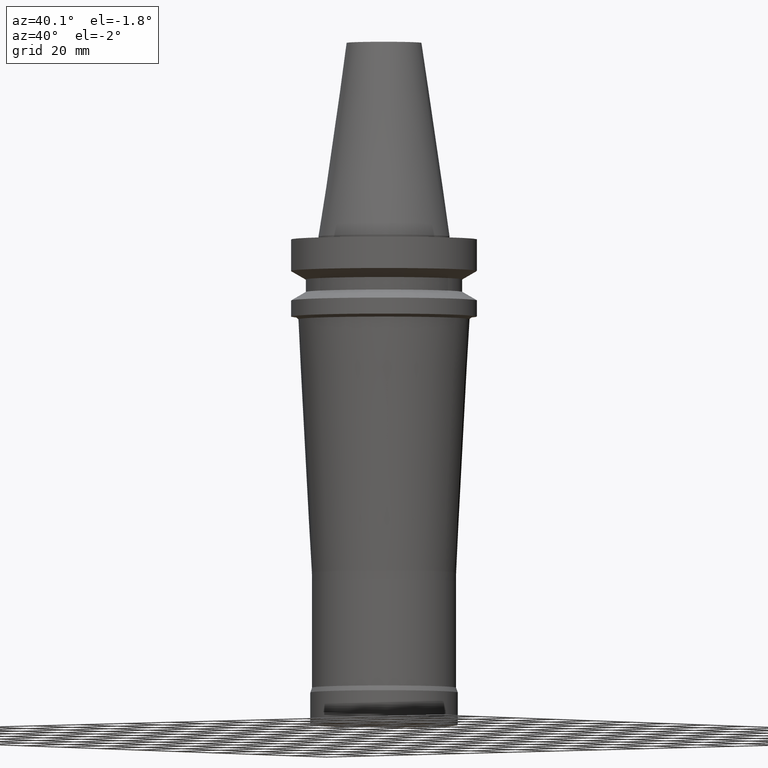
[diagram: clean part render]
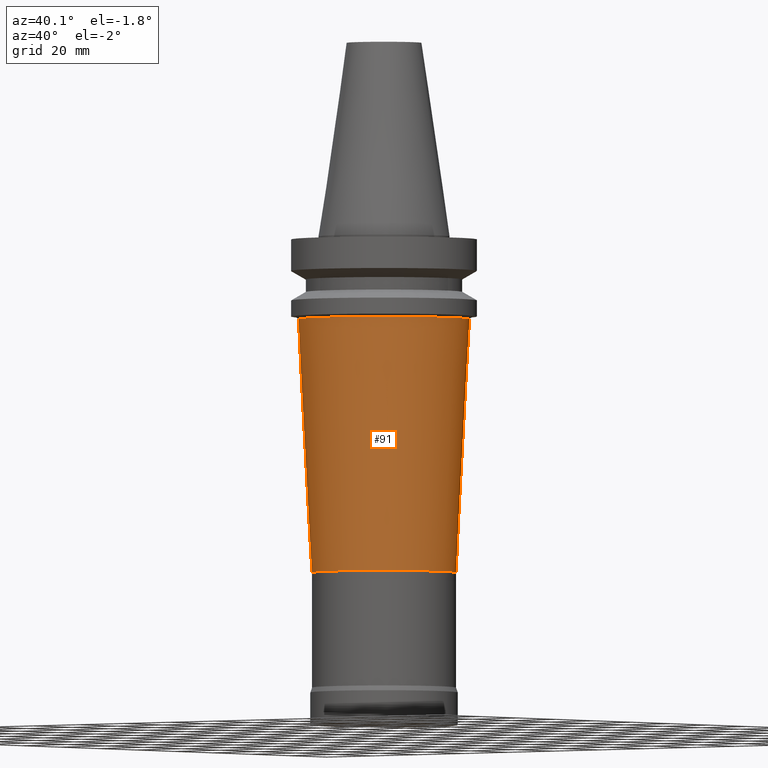
[diagram: same view with one face highlighted and labeled with its STEP entity id]
A machine part, auxiliary view. The second image highlights one B-rep face of the part: STEP entity #91.
In plain terms, the highlighted conical surface has half-angle 3.05 deg.
Its self-contained STEP definition (entity closure, byte-faithful):
#91=ADVANCED_FACE('',(#139,#140),#141,.T.);
#139=FACE_BOUND('',#188,.T.);
#140=FACE_BOUND('',#189,.T.);
#141=CONICAL_SURFACE('',#190,26.7231143169247,0.0532261655335444);
#188=EDGE_LOOP('',(#269));
#189=EDGE_LOOP('',(#270));
#190=AXIS2_PLACEMENT_3D('',#271,#272,#273);
#269=ORIENTED_EDGE('',*,*,#286,.F.);
#270=ORIENTED_EDGE('',*,*,#282,.T.);
#271=CARTESIAN_POINT('',(4.33009793936371E-015,8.66019587872742E-015,-70.7158658705268));
#272=DIRECTION('',(-6.12323399573677E-017,-1.22464679914735E-016,1.0));
#273=DIRECTION('',(-1.23259516440783E-032,1.0,1.22464679914735E-016));
#282=EDGE_CURVE('',#306,#306,#307,.T.);
#286=EDGE_CURVE('',#314,#314,#315,.T.);
#306=VERTEX_POINT('',#338);
#307=CIRCLE('',#339,29.0029654853427);
#314=VERTEX_POINT('',#346);
#315=CIRCLE('',#347,24.4432631485067);
#338=CARTESIAN_POINT('',(1.70979334248756E-015,29.0029654853427,-27.9230443206642));
#339=AXIS2_PLACEMENT_3D('',#378,#379,#380);
#346=CARTESIAN_POINT('',(6.95040253623987E-015,24.4432631485067,-113.508687420389));
#347=AXIS2_PLACEMENT_3D('',#390,#391,#392);
#378=CARTESIAN_POINT('',(1.70979334248756E-015,3.41958668497511E-015,-27.9230443206642));
#379=DIRECTION('',(6.12323399573677E-017,1.22464679914735E-016,-1.0));
#380=DIRECTION('',(-1.23259516440783E-032,1.0,1.22464679914735E-016));
#390=CARTESIAN_POINT('',(6.95040253623987E-015,1.39008050724797E-014,-113.508687420389));
#391=DIRECTION('',(6.12323399573677E-017,1.22464679914735E-016,-1.0));
#392=DIRECTION('',(-1.23259516440783E-032,1.0,1.22464679914735E-016));